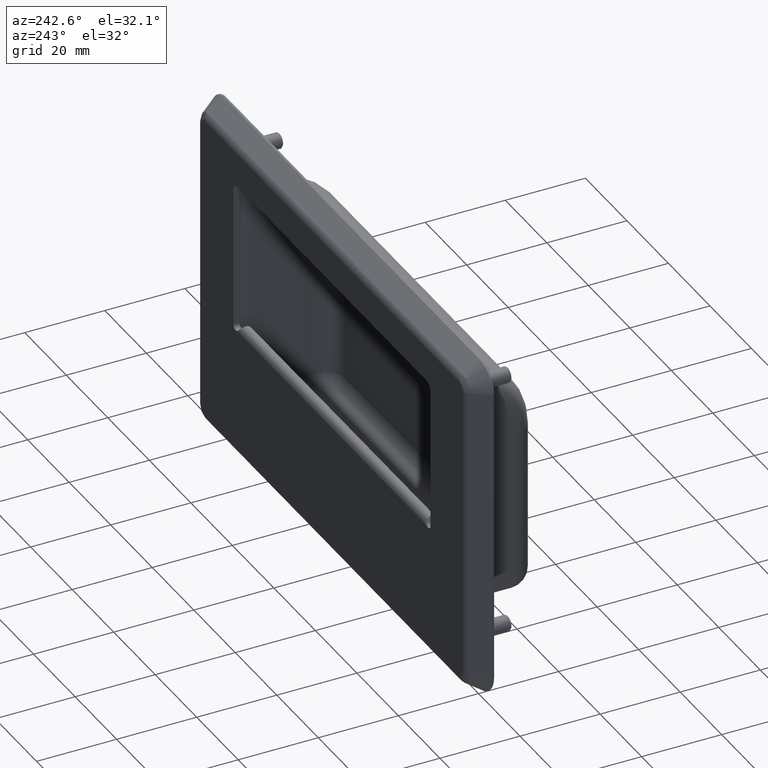
[diagram: clean part render]
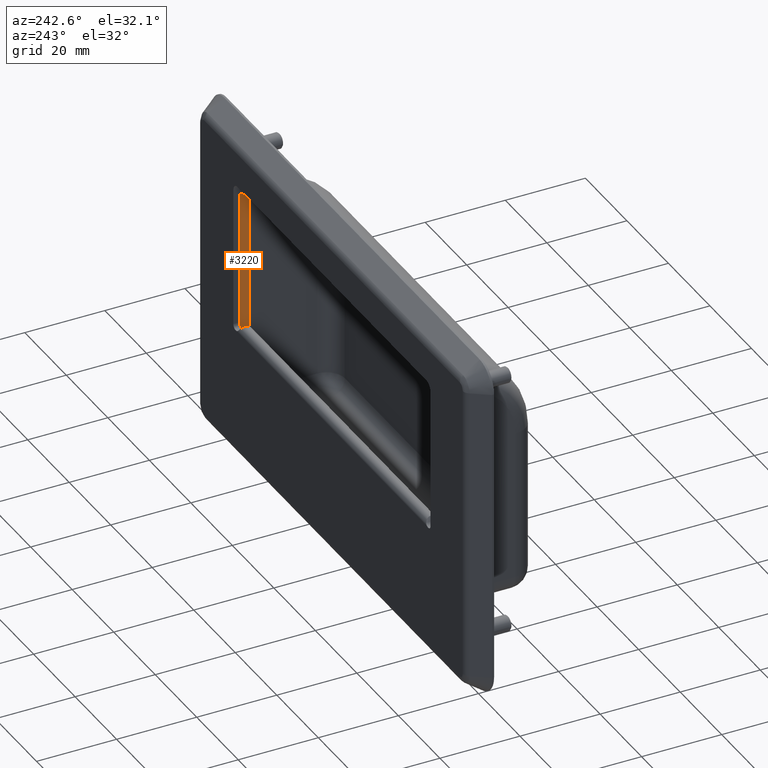
[diagram: same view with one face highlighted and labeled with its STEP entity id]
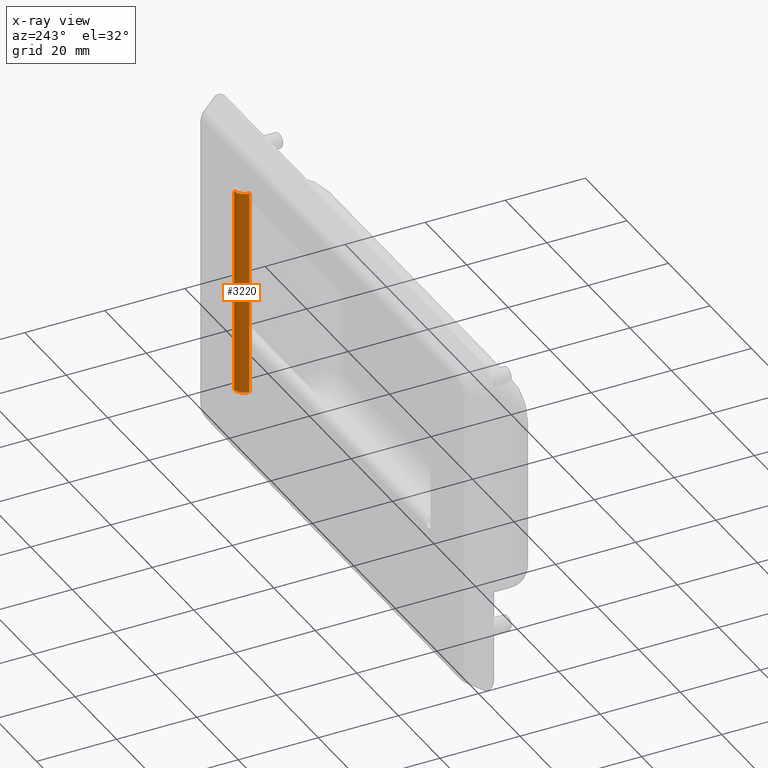
[diagram: x-ray of the same camera — body ghosted, the highlighted face saturated]
A machine part, auxiliary view. The second image highlights one B-rep face of the part: STEP entity #3220.
The next image is the same camera in x-ray: the body ghosted, the highlighted face saturated — about 0% of this face is hidden behind the body in this view.
In plain terms, the highlighted cylindrical surface (edge-blend (fillet) strip) has radius 2.5 mm, axis along (-0, 0, 1).
Its self-contained STEP definition (entity closure, byte-faithful):
#405=FACE_OUTER_BOUND('',#619,.T.);
#619=EDGE_LOOP('',(#2717,#2718,#2719,#2720));
#877=LINE('',#6746,#1121);
#878=LINE('',#6747,#1122);
#1121=VECTOR('',#4150,52.);
#1122=VECTOR('',#4151,52.);
#1275=CIRCLE('',#3469,2.49999999999999);
#1278=CIRCLE('',#3473,2.5);
#1559=VERTEX_POINT('',#6737);
#1560=VERTEX_POINT('',#6738);
#1561=VERTEX_POINT('',#6743);
#1562=VERTEX_POINT('',#6744);
#1969=EDGE_CURVE('',#1559,#1560,#1275,.T.);
#1972=EDGE_CURVE('',#1561,#1562,#1278,.T.);
#1973=EDGE_CURVE('',#1562,#1560,#877,.T.);
#1974=EDGE_CURVE('',#1559,#1561,#878,.T.);
#2717=ORIENTED_EDGE('',*,*,#1972,.T.);
#2718=ORIENTED_EDGE('',*,*,#1973,.T.);
#2719=ORIENTED_EDGE('',*,*,#1969,.F.);
#2720=ORIENTED_EDGE('',*,*,#1974,.T.);
#3060=CYLINDRICAL_SURFACE('',#3472,2.5);
#3220=ADVANCED_FACE('',(#405),#3060,.T.);
#3469=AXIS2_PLACEMENT_3D('',#6739,#4140,#4141);
#3472=AXIS2_PLACEMENT_3D('',#6742,#4146,#4147);
#3473=AXIS2_PLACEMENT_3D('',#6745,#4148,#4149);
#4140=DIRECTION('center_axis',(0.,0.,-1.));
#4141=DIRECTION('ref_axis',(-1.,0.,0.));
#4146=DIRECTION('center_axis',(0.,0.,1.));
#4147=DIRECTION('ref_axis',(-0.707106781186548,0.707106781186547,0.));
#4148=DIRECTION('center_axis',(0.,0.,-1.));
#4149=DIRECTION('ref_axis',(-1.,0.,0.));
#4150=DIRECTION('',(0.,0.,-1.));
#4151=DIRECTION('',(0.,0.,1.));
#6737=CARTESIAN_POINT('',(47.5,-2.,-26.));
#6738=CARTESIAN_POINT('',(50.,0.5,-26.));
#6739=CARTESIAN_POINT('Origin',(50.,-2.,-26.));
#6742=CARTESIAN_POINT('Origin',(50.,-2.,2.22044604925031E-15));
#6743=CARTESIAN_POINT('',(47.5,-2.,26.));
#6744=CARTESIAN_POINT('',(50.,0.5,26.));
#6745=CARTESIAN_POINT('Origin',(50.,-2.,26.));
#6746=CARTESIAN_POINT('',(50.,0.5,2.22044604925031E-15));
#6747=CARTESIAN_POINT('',(47.5,-2.,2.22044604925031E-15));